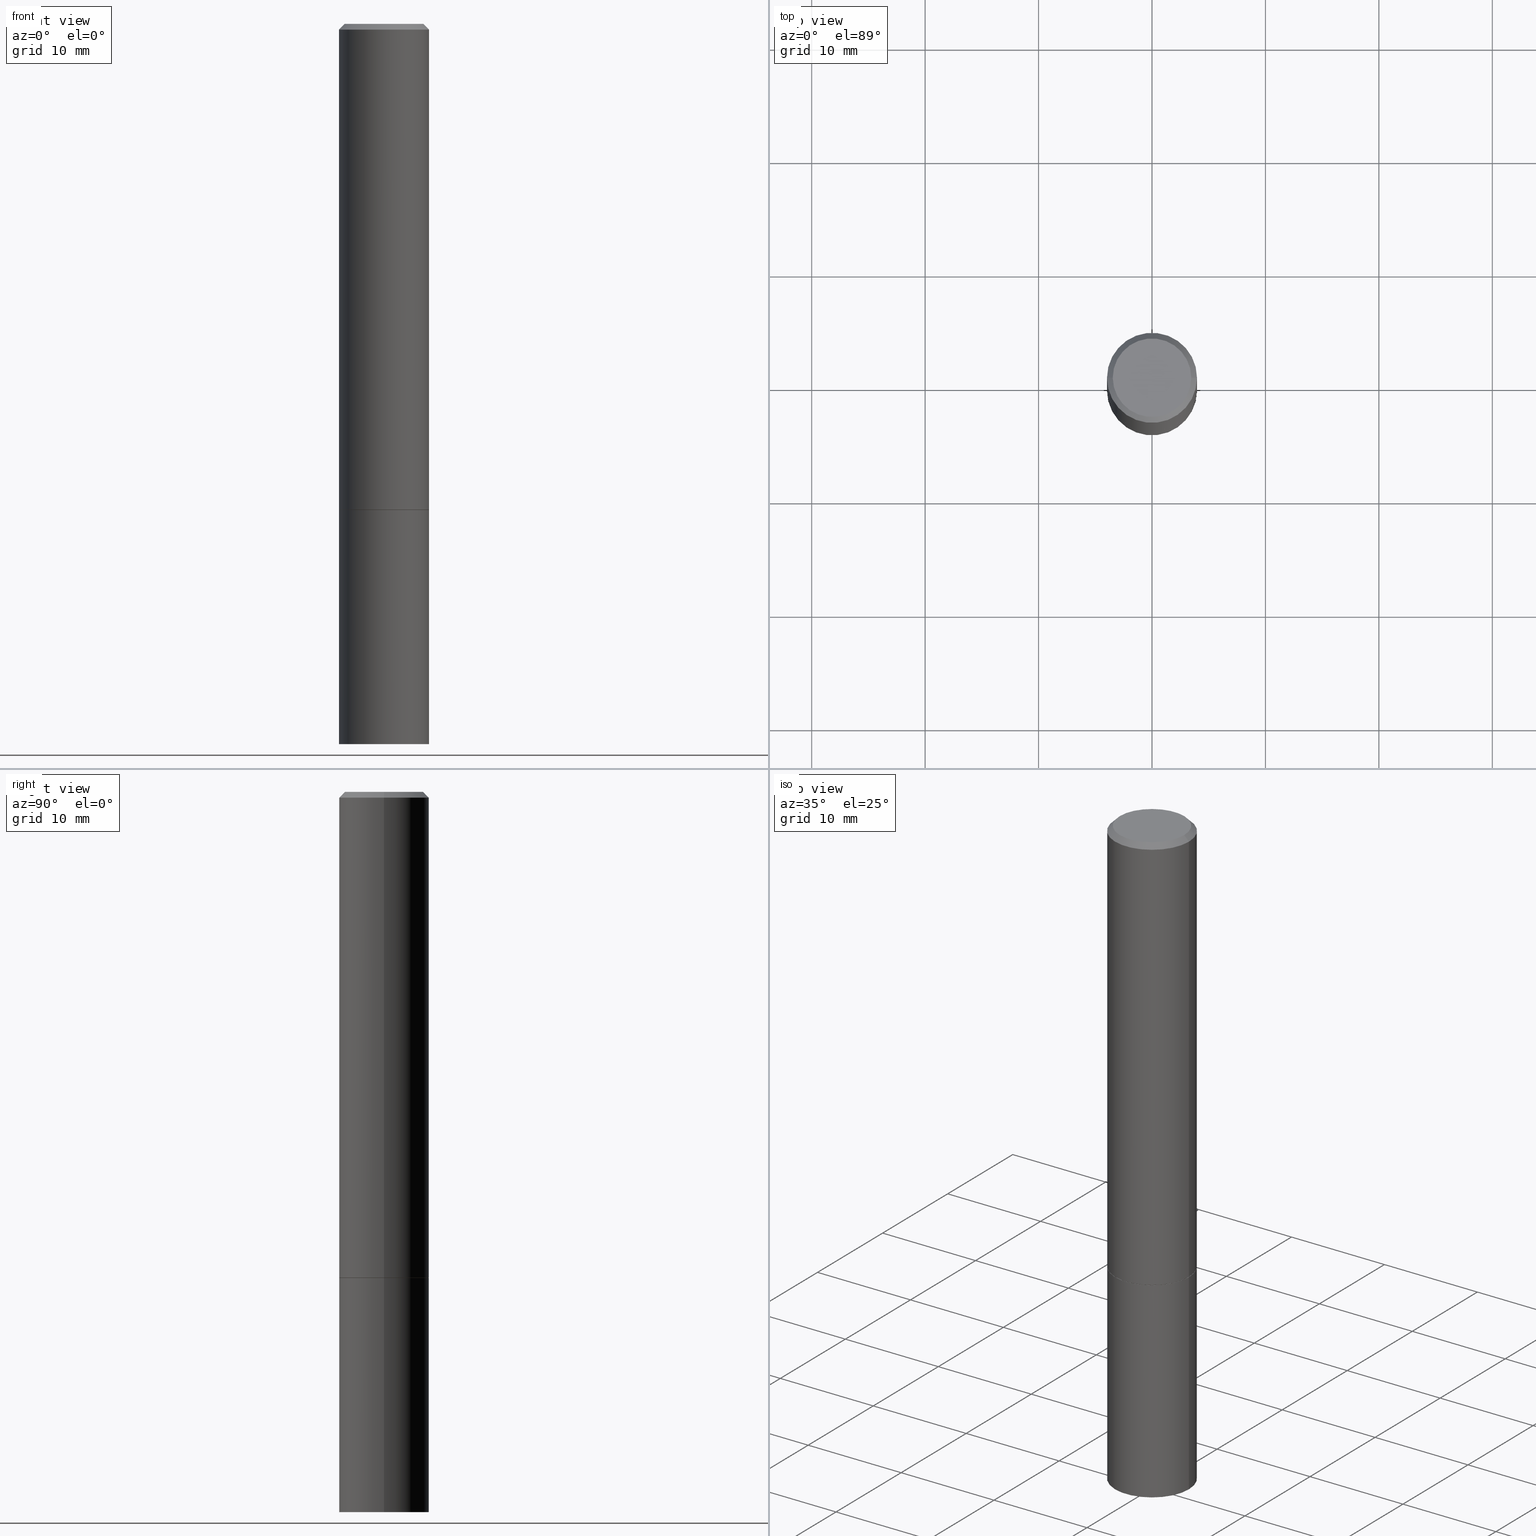
[diagram: canonical four-view strip — front | top / right | iso, engineering-drawing reading convention]
A machine part, canonical four-view strip (front | top / right | iso — engineering-drawing reading convention). The complete STEP part file that produces these views, byte-faithful:
ISO-10303-21;
HEADER;
FILE_DESCRIPTION (( 'STEP AP203' ),
    '1' );
FILE_NAME ('34663.STEP',
    '2024-02-27T16:37:16',
    ( '' ),
    ( '' ),
    'SwSTEP 2.0',
    'SolidWorks 2023',
    '' );
FILE_SCHEMA (( 'CONFIG_CONTROL_DESIGN' ));
ENDSEC;

DATA;
#1 = ADVANCED_FACE ( 'NONE', ( #108 ), #210, .T. ) ;
#2 = CARTESIAN_POINT ( 'NONE',  ( 1.091087918388520392E-15, 0.1562499999999940881, -1.687500000000000444 ) ) ;
#3 = PERSON_AND_ORGANIZATION ( #316, #141 ) ;
#4 = CARTESIAN_POINT ( 'NONE',  ( -0.1562499999999998057, 1.021258291611614692E-15, -0.02000000000000003511 ) ) ;
#5 = CARTESIAN_POINT ( 'NONE',  ( 4.126728610437418007E-29, -5.891874759297807259E-15, -1.687500000000000000 ) ) ;
#6 = ORIENTED_EDGE ( 'NONE', *, *, #315, .T. ) ;
#7 = CARTESIAN_POINT ( 'NONE',  ( -0.1562499999999999167, 1.110223024625155949E-15, -7.685836078523285555E-30 ) ) ;
#8 = VECTOR ( 'NONE', #37, 39.37007874015748143 ) ;
#9 = DIRECTION ( 'NONE',  ( 1.000000000000000000, -6.982962677686266711E-15, 4.876176775795935232E-29 ) ) ;
#10 = SHAPE_DEFINITION_REPRESENTATION ( #103, #362 ) ;
#11 = ORIENTED_EDGE ( 'NONE', *, *, #129, .F. ) ;
#12 = CARTESIAN_POINT ( 'NONE',  ( 0.1562499999999999167, -1.091087918388478385E-15, 7.619026212181144772E-30 ) ) ;
#13 = DIRECTION ( 'NONE',  ( 2.438088387897960049E-29, -3.491481338843145188E-15, -1.000000000000000000 ) ) ;
#14 = CIRCLE ( 'NONE', #267, 0.1562500000000000000 ) ;
#15 = ADVANCED_FACE ( 'NONE', ( #157 ), #279, .T. ) ;
#16 = VERTEX_POINT ( 'NONE', #276 ) ;
#17 = EDGE_CURVE ( 'NONE', #174, #72, #45, .T. ) ;
#18 = DIRECTION ( 'NONE',  ( 1.000000000000000000, -6.982962677686266711E-15, 4.876176775795936353E-29 ) ) ;
#19 = APPROVAL_PERSON_ORGANIZATION ( #161, #314, #119 ) ;
#20 = PERSON_AND_ORGANIZATION ( #316, #141 ) ;
#21 = ORIENTED_EDGE ( 'NONE', *, *, #246, .T. ) ;
#22 = CARTESIAN_POINT ( 'NONE',  ( 0.1362499999999998157, -1.038262645562516744E-15, 6.957025900226686667E-30 ) ) ;
#23 = DIRECTION ( 'NONE',  ( 0.7071067811865232589, -2.468850131082003836E-15, 0.7071067811865715536 ) ) ;
#24 = PERSON_AND_ORGANIZATION ( #316, #141 ) ;
#25 = VERTEX_POINT ( 'NONE', #241 ) ;
#26 = ORIENTED_EDGE ( 'NONE', *, *, #307, .F. ) ;
#27 = CARTESIAN_POINT ( 'NONE',  ( 0.1562500000000000000, -6.979471196347444214E-15, -1.686499999999999888 ) ) ;
#28 = AXIS2_PLACEMENT_3D ( 'NONE', #171, #64, #144 ) ;
#29 = ORIENTED_EDGE ( 'NONE', *, *, #17, .F. ) ;
#30 = AXIS2_PLACEMENT_3D ( 'NONE', #94, #175, #321 ) ;
#31 = CYLINDRICAL_SURFACE ( 'NONE', #289, 0.1562499999999999167 ) ;
#32 = CARTESIAN_POINT ( 'NONE',  ( 4.126728610437418007E-29, -5.891874759297807259E-15, -1.687500000000000000 ) ) ;
#33 = DIRECTION ( 'NONE',  ( -2.445468806185136597E-29, 3.491481338843145583E-15, 1.000000000000000000 ) ) ;
#34 = APPROVAL_DATE_TIME ( #169, #291 ) ;
#35 = FACE_OUTER_BOUND ( 'NONE', #59, .T. ) ;
#36 = CARTESIAN_POINT ( 'NONE',  ( 0.000000000000000000, 0.000000000000000000, 0.000000000000000000 ) ) ;
#37 = DIRECTION ( 'NONE',  ( -2.445468806185136877E-29, 3.491481338843145188E-15, 1.000000000000000000 ) ) ;
#38 = FACE_OUTER_BOUND ( 'NONE', #331, .T. ) ;
#39 = AXIS2_PLACEMENT_3D ( 'NONE', #83, #187, #120 ) ;
#40 = CIRCLE ( 'NONE', #176, 0.1552499999999999991 ) ;
#41 = ADVANCED_FACE ( 'NONE', ( #329 ), #270, .T. ) ;
#42 = DIRECTION ( 'NONE',  ( 0.7071067811865467956, -7.319954787623254468E-15, -0.7071067811865482389 ) ) ;
#43 = AXIS2_PLACEMENT_3D ( 'NONE', #223, #90, #58 ) ;
#44 = LOCAL_TIME ( 11, 37, 16.00000000000000000, #330 ) ;
#45 = LINE ( 'NONE', #160, #259 ) ;
#46 = CARTESIAN_POINT ( 'NONE',  ( 0.1552499999999999991, -6.975979715008601207E-15, -1.687500000000000000 ) ) ;
#47 = VERTEX_POINT ( 'NONE', #113 ) ;
#48 = DIRECTION ( 'NONE',  ( 1.000000000000000000, -6.982962677686266711E-15, 4.876176775795935232E-29 ) ) ;
#49 = DATE_TIME_ROLE ( 'creation_date' ) ;
#50 = CARTESIAN_POINT ( 'NONE',  ( 0.000000000000000000, 0.000000000000000000, 0.000000000000000000 ) ) ;
#51 = CC_DESIGN_PERSON_AND_ORGANIZATION_ASSIGNMENT ( #305, #188, ( #112 ) ) ;
#52 = ADVANCED_FACE ( 'NONE', ( #274 ), #220, .T. ) ;
#53 = CALENDAR_DATE ( 2024, 27, 2 ) ;
#54 = AXIS2_PLACEMENT_3D ( 'NONE', #126, #293, #204 ) ;
#55 = ORIENTED_EDGE ( 'NONE', *, *, #208, .F. ) ;
#56 = CALENDAR_DATE ( 2024, 27, 2 ) ;
#57 = EDGE_LOOP ( 'NONE', ( #240, #360, #136, #89 ) ) ;
#58 = DIRECTION ( 'NONE',  ( 1.000000000000000000, -6.982962677686265133E-15, 4.876176775795935232E-29 ) ) ;
#59 = EDGE_LOOP ( 'NONE', ( #271, #275, #227, #186 ) ) ;
#60 = PERSON_AND_ORGANIZATION ( #316, #141 ) ;
#61 = ORIENTED_EDGE ( 'NONE', *, *, #179, .F. ) ;
#62 =( LENGTH_UNIT ( ) NAMED_UNIT ( * ) SI_UNIT ( $, .METRE. ) );
#63 = CYLINDRICAL_SURFACE ( 'NONE', #357, 0.1562500000000000000 ) ;
#64 = DIRECTION ( 'NONE',  ( -2.445468806185136597E-29, 3.491481338843145583E-15, 1.000000000000000000 ) ) ;
#65 = DIRECTION ( 'NONE',  ( 1.000000000000000000, -6.982962677686269077E-15, 0.000000000000000000 ) ) ;
#66 = PLANE ( 'NONE',  #184 ) ;
#67 = ORIENTED_EDGE ( 'NONE', *, *, #246, .F. ) ;
#68 = EDGE_CURVE ( 'NONE', #243, #72, #308, .T. ) ;
#69 = LINE ( 'NONE', #206, #154 ) ;
#70 = AXIS2_PLACEMENT_3D ( 'NONE', #5, #127, #147 ) ;
#71 = LOCAL_TIME ( 11, 37, 16.00000000000000000, #332 ) ;
#72 = VERTEX_POINT ( 'NONE', #27 ) ;
#73 = CARTESIAN_POINT ( 'NONE',  ( 4.126728610437418007E-29, -5.891874759297807259E-15, -1.687500000000000000 ) ) ;
#74 = EDGE_LOOP ( 'NONE', ( #130, #350, #333, #172 ) ) ;
#75 = AXIS2_PLACEMENT_3D ( 'NONE', #230, #201, #65 ) ;
#76 = CARTESIAN_POINT ( 'NONE',  ( 1.091087918388540310E-15, 0.1562499999999912570, -2.500000000000000444 ) ) ;
#77 = DIMENSIONAL_EXPONENTS ( 1.000000000000000000, 0.000000000000000000, 0.000000000000000000, 0.000000000000000000, 0.000000000000000000, 0.000000000000000000, 0.000000000000000000 ) ;
#78 = MANIFOLD_SOLID_BREP ( 'Body-Move/Copy2[1]', #79 ) ;
#79 = CLOSED_SHELL ( 'NONE', ( #158, #1, #101, #41 ) ) ;
#80 = VECTOR ( 'NONE', #319, 39.37007874015748143 ) ;
#81 = APPROVAL_DATE_TIME ( #163, #314 ) ;
#82 = DIRECTION ( 'NONE',  ( 1.000000000000000000, -6.982962677686269077E-15, 0.000000000000000000 ) ) ;
#83 = CARTESIAN_POINT ( 'NONE',  ( 0.000000000000000000, 0.000000000000000000, 0.000000000000000000 ) ) ;
#84 = EDGE_CURVE ( 'NONE', #104, #190, #348, .T. ) ;
#85 = EDGE_CURVE ( 'NONE', #72, #243, #87, .T. ) ;
#86 = CALENDAR_DATE ( 2024, 27, 2 ) ;
#87 = CIRCLE ( 'NONE', #153, 0.1562500000000000000 ) ;
#88 = CONICAL_SURFACE ( 'NONE', #137, 0.1552499999999999991, 0.7853981633974141952 ) ;
#89 = ORIENTED_EDGE ( 'NONE', *, *, #324, .F. ) ;
#90 = DIRECTION ( 'NONE',  ( -2.445468806185136597E-29, 3.491481338843145583E-15, 1.000000000000000000 ) ) ;
#91 = DATE_AND_TIME ( #86, #349 ) ;
#92 = EDGE_LOOP ( 'NONE', ( #214, #6, #346, #249 ) ) ;
#93 = CARTESIAN_POINT ( 'NONE',  ( -0.1362499999999998157, 9.863434782231836346E-16, -6.775751096333130074E-30 ) ) ;
#94 = CARTESIAN_POINT ( 'NONE',  ( 4.126728610437418007E-29, -5.891874759297807259E-15, -1.687500000000000000 ) ) ;
#95 = AXIS2_PLACEMENT_3D ( 'NONE', #323, #269, #272 ) ;
#96 = APPROVAL_PERSON_ORGANIZATION ( #3, #291, #197 ) ;
#97 = DATE_TIME_ROLE ( 'classification_date' ) ;
#98 = VERTEX_POINT ( 'NONE', #168 ) ;
#99 = PLANE ( 'NONE',  #207 ) ;
#100 = CC_DESIGN_PERSON_AND_ORGANIZATION_ASSIGNMENT ( #128, #254, ( #185 ) ) ;
#101 = ADVANCED_FACE ( 'NONE', ( #343 ), #66, .F. ) ;
#102 = DIRECTION ( 'NONE',  ( 1.000000000000000000, -6.982962677686269077E-15, 0.000000000000000000 ) ) ;
#103 = PRODUCT_DEFINITION_SHAPE ( 'NONE', 'NONE',  #112 ) ;
#104 = VERTEX_POINT ( 'NONE', #93 ) ;
#105 = DIRECTION ( 'NONE',  ( 1.000000000000000000, -6.982962677686268288E-15, 0.000000000000000000 ) ) ;
#106 = CONICAL_SURFACE ( 'NONE', #30, 0.1552499999999999991, 0.7853981633974141952 ) ;
#107 = PRODUCT ( '34663', '34663', '', ( #266 ) ) ;
#108 = FACE_OUTER_BOUND ( 'NONE', #216, .T. ) ;
#109 =( CONVERSION_BASED_UNIT ( 'INCH', #198 ) LENGTH_UNIT ( ) NAMED_UNIT ( #77 ) );
#110 = CC_DESIGN_APPROVAL ( #218, ( #185 ) ) ;
#111 = EDGE_LOOP ( 'NONE', ( #125, #328, #11, #67 ) ) ;
#112 = PRODUCT_DEFINITION ( 'UNKNOWN', '', #185, #248 ) ;
#113 = CARTESIAN_POINT ( 'NONE',  ( -0.1562499999999998057, 1.021258291611614692E-15, -0.02000000000000003511 ) ) ;
#114 = ORIENTED_EDGE ( 'NONE', *, *, #68, .T. ) ;
#115 = CARTESIAN_POINT ( 'NONE',  ( 6.113672015462842613E-29, -8.728703347107864943E-15, -2.500000000000000000 ) ) ;
#116 = AXIS2_PLACEMENT_3D ( 'NONE', #76, #180, #297 ) ;
#117 = ADVANCED_FACE ( 'NONE', ( #337 ), #31, .T. ) ;
#118 = ORIENTED_EDGE ( 'NONE', *, *, #234, .F. ) ;
#119 = APPROVAL_ROLE ( '' ) ;
#120 = DIRECTION ( 'NONE',  ( 1.000000000000000000, -6.982962677686266711E-15, 4.876176775795936353E-29 ) ) ;
#121 = CIRCLE ( 'NONE', #215, 0.1362499999999998157 ) ;
#122 = SECURITY_CLASSIFICATION ( '', '', #151 ) ;
#123 = DIRECTION ( 'NONE',  ( 1.000000000000000000, -6.982962677686269077E-15, 0.000000000000000000 ) ) ;
#124 = CALENDAR_DATE ( 2024, 27, 2 ) ;
#125 = ORIENTED_EDGE ( 'NONE', *, *, #85, .T. ) ;
#126 = CARTESIAN_POINT ( 'NONE',  ( 4.126728610437418007E-29, -5.891874759297807259E-15, -1.687500000000000000 ) ) ;
#127 = DIRECTION ( 'NONE',  ( -2.438088387897960049E-29, 3.491481338843145188E-15, 1.000000000000000000 ) ) ;
#128 = PERSON_AND_ORGANIZATION ( #316, #141 ) ;
#129 = EDGE_CURVE ( 'NONE', #278, #47, #237, .T. ) ;
#130 = ORIENTED_EDGE ( 'NONE', *, *, #189, .F. ) ;
#131 = LINE ( 'NONE', #12, #8 ) ;
#132 = CARTESIAN_POINT ( 'NONE',  ( 0.000000000000000000, 0.000000000000000000, 0.000000000000000000 ) ) ;
#133 = DIRECTION ( 'NONE',  ( 1.000000000000000000, -6.982962677686269077E-15, 0.000000000000000000 ) ) ;
#134 = FACE_OUTER_BOUND ( 'NONE', #92, .T. ) ;
#135 = LOCAL_TIME ( 11, 37, 16.00000000000000000, #199 ) ;
#136 = ORIENTED_EDGE ( 'NONE', *, *, #322, .T. ) ;
#137 = AXIS2_PLACEMENT_3D ( 'NONE', #32, #228, #339 ) ;
#138 = DIRECTION ( 'NONE',  ( 2.445468806185136597E-29, -3.491481338843145583E-15, -1.000000000000000000 ) ) ;
#139 = ORIENTED_EDGE ( 'NONE', *, *, #84, .T. ) ;
#140 = AXIS2_PLACEMENT_3D ( 'NONE', #280, #224, #123 ) ;
#141 = ORGANIZATION ( 'UNSPECIFIED', 'UNSPECIFIED', '' ) ;
#142 = CARTESIAN_POINT ( 'NONE',  ( 4.124283141631232404E-29, -5.888383277958965040E-15, -1.686499999999999888 ) ) ;
#143 = CARTESIAN_POINT ( 'NONE',  ( 4.890937612370281041E-31, -6.982962677686302702E-17, -0.02000000000000003511 ) ) ;
#144 = DIRECTION ( 'NONE',  ( 1.000000000000000000, -6.982962677686265133E-15, 0.000000000000000000 ) ) ;
#145 = ADVANCED_FACE ( 'NONE', ( #257 ), #202, .F. ) ;
#146 = DIRECTION ( 'NONE',  ( -2.445468806185136597E-29, 3.491481338843145583E-15, 1.000000000000000000 ) ) ;
#147 = DIRECTION ( 'NONE',  ( 1.000000000000000000, -6.982962677686265922E-15, 4.876176775795935793E-29 ) ) ;
#148 = ORIENTED_EDGE ( 'NONE', *, *, #324, .T. ) ;
#149 = FACE_OUTER_BOUND ( 'NONE', #162, .T. ) ;
#150 = LOCAL_TIME ( 11, 37, 16.00000000000000000, #193 ) ;
#151 = SECURITY_CLASSIFICATION_LEVEL ( 'unclassified' ) ;
#152 = LINE ( 'NONE', #264, #302 ) ;
#153 = AXIS2_PLACEMENT_3D ( 'NONE', #142, #251, #229 ) ;
#154 = VECTOR ( 'NONE', #283, 39.37007874015748854 ) ;
#155 = DIRECTION ( 'NONE',  ( -2.445468806185136597E-29, 3.491481338843145583E-15, 1.000000000000000000 ) ) ;
#156 = CC_DESIGN_PERSON_AND_ORGANIZATION_ASSIGNMENT ( #24, #192, ( #185 ) ) ;
#157 = FACE_OUTER_BOUND ( 'NONE', #74, .T. ) ;
#158 = ADVANCED_FACE ( 'NONE', ( #296 ), #63, .T. ) ;
#159 = APPROVAL_PERSON_ORGANIZATION ( #20, #218, #217 ) ;
#160 = CARTESIAN_POINT ( 'NONE',  ( 0.1552499999999999991, -6.975979715008601207E-15, -1.687500000000000000 ) ) ;
#161 = PERSON_AND_ORGANIZATION ( #316, #141 ) ;
#162 = EDGE_LOOP ( 'NONE', ( #139, #366 ) ) ;
#163 = DATE_AND_TIME ( #56, #71 ) ;
#164 = ORIENTED_EDGE ( 'NONE', *, *, #85, .F. ) ;
#165 = CC_DESIGN_PERSON_AND_ORGANIZATION_ASSIGNMENT ( #361, #326, ( #107 ) ) ;
#166 = AXIS2_PLACEMENT_3D ( 'NONE', #358, #138, #354 ) ;
#167 = ORIENTED_EDGE ( 'NONE', *, *, #322, .F. ) ;
#168 = CARTESIAN_POINT ( 'NONE',  ( -0.1562500000000000000, -6.200066028577678771E-15, -2.500000000000000000 ) ) ;
#169 = DATE_AND_TIME ( #344, #150 ) ;
#170 = DIRECTION ( 'NONE',  ( -0.7071067811865467956, 2.468850131082249172E-15, -0.7071067811865482389 ) ) ;
#171 = CARTESIAN_POINT ( 'NONE',  ( 4.890937612370281041E-31, -6.982962677686302702E-17, -0.02000000000000003511 ) ) ;
#172 = ORIENTED_EDGE ( 'NONE', *, *, #231, .F. ) ;
#173 = DIRECTION ( 'NONE',  ( 2.445468806185136597E-29, -3.491481338843145583E-15, -1.000000000000000000 ) ) ;
#174 = VERTEX_POINT ( 'NONE', #46 ) ;
#175 = DIRECTION ( 'NONE',  ( -2.445468806185136597E-29, 3.491481338843145583E-15, 1.000000000000000000 ) ) ;
#176 = AXIS2_PLACEMENT_3D ( 'NONE', #219, #347, #105 ) ;
#177 = DIRECTION ( 'NONE',  ( -1.000000000000000000, 6.982962677686266711E-15, 0.000000000000000000 ) ) ;
#178 = ORIENTED_EDGE ( 'NONE', *, *, #273, .T. ) ;
#179 = EDGE_CURVE ( 'NONE', #98, #255, #14, .T. ) ;
#180 = DIRECTION ( 'NONE',  ( 2.438088387897960049E-29, -3.491481338843145188E-15, -1.000000000000000000 ) ) ;
#181 = LINE ( 'NONE', #299, #294 ) ;
#182 = DIRECTION ( 'NONE',  ( -2.445468806185136597E-29, 3.491481338843145583E-15, 1.000000000000000000 ) ) ;
#183 =( NAMED_UNIT ( * ) SI_UNIT ( $, .STERADIAN. ) SOLID_ANGLE_UNIT ( ) );
#184 = AXIS2_PLACEMENT_3D ( 'NONE', #2, #365, #336 ) ;
#185 = PRODUCT_DEFINITION_FORMATION_WITH_SPECIFIED_SOURCE ( 'ANY', '', #107, .NOT_KNOWN. ) ;
#186 = ORIENTED_EDGE ( 'NONE', *, *, #208, .T. ) ;
#187 = DIRECTION ( 'NONE',  ( -2.445468806185136597E-29, 3.491481338843145583E-15, 1.000000000000000000 ) ) ;
#188 = PERSON_AND_ORGANIZATION_ROLE ( 'creator' ) ;
#189 = EDGE_CURVE ( 'NONE', #190, #104, #121, .T. ) ;
#190 = VERTEX_POINT ( 'NONE', #22 ) ;
#191 = APPLICATION_CONTEXT ( 'configuration controlled 3d designs of mechanical parts and assemblies' ) ;
#192 = PERSON_AND_ORGANIZATION_ROLE ( 'creator' ) ;
#193 = COORDINATED_UNIVERSAL_TIME_OFFSET ( 5, 0, .BEHIND. ) ;
#194 = DIRECTION ( 'NONE',  ( -2.445468806185136877E-29, 3.491481338843145188E-15, 1.000000000000000000 ) ) ;
#195 = CIRCLE ( 'NONE', #359, 0.1562500000000000000 ) ;
#196 = DIRECTION ( 'NONE',  ( -2.445468806185136597E-29, 3.491481338843145583E-15, 1.000000000000000000 ) ) ;
#197 = APPROVAL_ROLE ( '' ) ;
#198 = LENGTH_MEASURE_WITH_UNIT ( LENGTH_MEASURE( 0.02539999999999999897 ), #62 );
#199 = COORDINATED_UNIVERSAL_TIME_OFFSET ( 5, 0, .BEHIND. ) ;
#200 = EDGE_LOOP ( 'NONE', ( #356, #148 ) ) ;
#201 = DIRECTION ( 'NONE',  ( -2.445468806185136597E-29, 3.491481338843145583E-15, 1.000000000000000000 ) ) ;
#202 = PLANE ( 'NONE',  #70 ) ;
#203 = ORIENTED_EDGE ( 'NONE', *, *, #247, .T. ) ;
#204 = DIRECTION ( 'NONE',  ( 1.000000000000000000, -6.982962677686268288E-15, 0.000000000000000000 ) ) ;
#205 = CLOSED_SHELL ( 'NONE', ( #300, #117, #15, #306, #52, #262, #145, #338 ) ) ;
#206 = CARTESIAN_POINT ( 'NONE',  ( -0.1552499999999999991, -4.788757162030252515E-15, -1.687500000000000000 ) ) ;
#207 = AXIS2_PLACEMENT_3D ( 'NONE', #258, #13, #261 ) ;
#208 = EDGE_CURVE ( 'NONE', #47, #278, #244, .T. ) ;
#209 = EDGE_CURVE ( 'NONE', #190, #278, #181, .T. ) ;
#210 = PLANE ( 'NONE',  #116 ) ;
#211 = UNCERTAINTY_MEASURE_WITH_UNIT (LENGTH_MEASURE( 1.000000000000000082E-05 ), #109, 'distance_accuracy_value', 'NONE');
#212 = CARTESIAN_POINT ( 'NONE',  ( 0.000000000000000000, 0.000000000000000000, 0.000000000000000000 ) ) ;
#213 = DIRECTION ( 'NONE',  ( -2.445468806185136597E-29, 3.491481338843145583E-15, 1.000000000000000000 ) ) ;
#214 = ORIENTED_EDGE ( 'NONE', *, *, #247, .F. ) ;
#215 = AXIS2_PLACEMENT_3D ( 'NONE', #50, #182, #48 ) ;
#216 = EDGE_LOOP ( 'NONE', ( #26, #61 ) ) ;
#217 = APPROVAL_ROLE ( '' ) ;
#218 = APPROVAL ( #242, 'UNSPECIFIED' ) ;
#219 = CARTESIAN_POINT ( 'NONE',  ( 4.126728610437418007E-29, -5.891874759297807259E-15, -1.687500000000000000 ) ) ;
#220 = CYLINDRICAL_SURFACE ( 'NONE', #43, 0.1562499999999999167 ) ;
#221 = APPLICATION_PROTOCOL_DEFINITION ( 'international standard', 'config_control_design', 1994, #304 ) ;
#222 =( GEOMETRIC_REPRESENTATION_CONTEXT ( 3 ) GLOBAL_UNCERTAINTY_ASSIGNED_CONTEXT ( ( #211 ) ) GLOBAL_UNIT_ASSIGNED_CONTEXT ( ( #109, #298, #183 ) ) REPRESENTATION_CONTEXT ( 'NONE', 'WORKASPACE' ) );
#223 = CARTESIAN_POINT ( 'NONE',  ( 0.000000000000000000, 0.000000000000000000, 0.000000000000000000 ) ) ;
#224 = DIRECTION ( 'NONE',  ( -2.445468806185136597E-29, 3.491481338843145583E-15, 1.000000000000000000 ) ) ;
#225 = CC_DESIGN_PERSON_AND_ORGANIZATION_ASSIGNMENT ( #60, #284, ( #122 ) ) ;
#226 = ORIENTED_EDGE ( 'NONE', *, *, #307, .T. ) ;
#227 = ORIENTED_EDGE ( 'NONE', *, *, #231, .T. ) ;
#228 = DIRECTION ( 'NONE',  ( -2.445468806185136597E-29, 3.491481338843145583E-15, 1.000000000000000000 ) ) ;
#229 = DIRECTION ( 'NONE',  ( 1.000000000000000000, -6.982962677686269077E-15, 0.000000000000000000 ) ) ;
#230 = CARTESIAN_POINT ( 'NONE',  ( 4.126728610437418007E-29, -5.891874759297807259E-15, -1.687500000000000000 ) ) ;
#231 = EDGE_CURVE ( 'NONE', #104, #47, #353, .T. ) ;
#232 = DIRECTION ( 'NONE',  ( -2.445468806185136597E-29, 3.491481338843145583E-15, 1.000000000000000000 ) ) ;
#233 = CIRCLE ( 'NONE', #303, 0.1562500000000000000 ) ;
#234 = EDGE_CURVE ( 'NONE', #295, #25, #311, .T. ) ;
#235 = ORIENTED_EDGE ( 'NONE', *, *, #363, .F. ) ;
#236 = APPLICATION_PROTOCOL_DEFINITION ( 'international standard', 'config_control_design', 1994, #191 ) ;
#237 = CIRCLE ( 'NONE', #28, 0.1562499999999998057 ) ;
#238 = VECTOR ( 'NONE', #194, 39.37007874015748143 ) ;
#239 = COORDINATED_UNIVERSAL_TIME_OFFSET ( 5, 0, .BEHIND. ) ;
#240 = ORIENTED_EDGE ( 'NONE', *, *, #273, .F. ) ;
#241 = CARTESIAN_POINT ( 'NONE',  ( -0.1562500000000000000, -6.200066028577678771E-15, -1.687500000000000000 ) ) ;
#242 = APPROVAL_STATUS ( 'not_yet_approved' ) ;
#243 = VERTEX_POINT ( 'NONE', #342 ) ;
#244 = CIRCLE ( 'NONE', #95, 0.1562499999999998057 ) ;
#245 = VECTOR ( 'NONE', #170, 39.37007874015748143 ) ;
#246 = EDGE_CURVE ( 'NONE', #72, #278, #131, .T. ) ;
#247 = EDGE_CURVE ( 'NONE', #16, #243, #69, .T. ) ;
#248 = DESIGN_CONTEXT ( 'detailed design', #304, 'design' ) ;
#249 = ORIENTED_EDGE ( 'NONE', *, *, #68, .F. ) ;
#250 = PRODUCT_RELATED_PRODUCT_CATEGORY ( 'detail', '', ( #107 ) ) ;
#251 = DIRECTION ( 'NONE',  ( -2.445468806185136597E-29, 3.491481338843145583E-15, 1.000000000000000000 ) ) ;
#252 = ORIENTED_EDGE ( 'NONE', *, *, #351, .F. ) ;
#253 = CARTESIAN_POINT ( 'NONE',  ( 0.000000000000000000, 0.000000000000000000, 0.000000000000000000 ) ) ;
#254 = PERSON_AND_ORGANIZATION_ROLE ( 'design_supplier' ) ;
#255 = VERTEX_POINT ( 'NONE', #288 ) ;
#256 = CARTESIAN_POINT ( 'NONE',  ( 6.113672015462842613E-29, -8.728703347107864943E-15, -2.500000000000000000 ) ) ;
#257 = FACE_OUTER_BOUND ( 'NONE', #265, .T. ) ;
#258 = CARTESIAN_POINT ( 'NONE',  ( 9.514286648347523799E-16, 0.1362499999999998157, -4.757143324173778663E-16 ) ) ;
#259 = VECTOR ( 'NONE', #23, 39.37007874015748854 ) ;
#260 = AXIS2_PLACEMENT_3D ( 'NONE', #143, #173, #177 ) ;
#261 = DIRECTION ( 'NONE',  ( -1.000000000000000000, 6.982962677686265922E-15, -4.876176775795935793E-29 ) ) ;
#262 = ADVANCED_FACE ( 'NONE', ( #134 ), #106, .T. ) ;
#263 = LINE ( 'NONE', #7, #80 ) ;
#264 = CARTESIAN_POINT ( 'NONE',  ( 0.1562500000000000000, -1.091087918388479174E-15, 7.619026212181150377E-30 ) ) ;
#265 = EDGE_LOOP ( 'NONE', ( #235, #341 ) ) ;
#266 = MECHANICAL_CONTEXT ( 'NONE', #191, 'mechanical' ) ;
#267 = AXIS2_PLACEMENT_3D ( 'NONE', #115, #213, #82 ) ;
#268 = CC_DESIGN_APPROVAL ( #314, ( #112 ) ) ;
#269 = DIRECTION ( 'NONE',  ( -2.445468806185136597E-29, 3.491481338843145583E-15, 1.000000000000000000 ) ) ;
#270 = CYLINDRICAL_SURFACE ( 'NONE', #39, 0.1562500000000000000 ) ;
#271 = ORIENTED_EDGE ( 'NONE', *, *, #209, .F. ) ;
#272 = DIRECTION ( 'NONE',  ( 1.000000000000000000, -6.982962677686265133E-15, 0.000000000000000000 ) ) ;
#273 = EDGE_CURVE ( 'NONE', #98, #25, #313, .T. ) ;
#274 = FACE_OUTER_BOUND ( 'NONE', #335, .T. ) ;
#275 = ORIENTED_EDGE ( 'NONE', *, *, #84, .F. ) ;
#276 = CARTESIAN_POINT ( 'NONE',  ( -0.1552499999999999991, -4.783458707682030113E-15, -1.687500000000000000 ) ) ;
#277 = DATE_AND_TIME ( #53, #44 ) ;
#278 = VERTEX_POINT ( 'NONE', #292 ) ;
#279 = CONICAL_SURFACE ( 'NONE', #166, 0.1562499999999998057, 0.7853981633974472798 ) ;
#280 = CARTESIAN_POINT ( 'NONE',  ( 4.124283141631232404E-29, -5.888383277958965040E-15, -1.686499999999999888 ) ) ;
#281 = DATE_AND_TIME ( #124, #135 ) ;
#282 = EDGE_LOOP ( 'NONE', ( #226, #178, #118, #167 ) ) ;
#283 = DIRECTION ( 'NONE',  ( -0.7071067811865232589, 7.493145998870265808E-15, 0.7071067811865715536 ) ) ;
#284 = PERSON_AND_ORGANIZATION_ROLE ( 'classification_officer' ) ;
#285 = ORIENTED_EDGE ( 'NONE', *, *, #363, .T. ) ;
#286 = DIRECTION ( 'NONE',  ( -2.445468806185136877E-29, 3.491481338843145188E-15, 1.000000000000000000 ) ) ;
#287 = CC_DESIGN_DATE_AND_TIME_ASSIGNMENT ( #91, #49, ( #112 ) ) ;
#288 = CARTESIAN_POINT ( 'NONE',  ( 0.1562500000000000000, -9.819791265496344905E-15, -2.500000000000000000 ) ) ;
#289 = AXIS2_PLACEMENT_3D ( 'NONE', #253, #196, #312 ) ;
#290 = CONICAL_SURFACE ( 'NONE', #260, 0.1562499999999998057, 0.7853981633974472798 ) ;
#291 = APPROVAL ( #320, 'UNSPECIFIED' ) ;
#292 = CARTESIAN_POINT ( 'NONE',  ( 0.1562499999999998057, -1.141782438928663330E-15, -0.02000000000000003511 ) ) ;
#293 = DIRECTION ( 'NONE',  ( -2.445468806185136597E-29, 3.491481338843145583E-15, 1.000000000000000000 ) ) ;
#294 = VECTOR ( 'NONE', #42, 39.37007874015748143 ) ;
#295 = VERTEX_POINT ( 'NONE', #345 ) ;
#296 = FACE_OUTER_BOUND ( 'NONE', #282, .T. ) ;
#297 = DIRECTION ( 'NONE',  ( -1.000000000000000000, 6.982962677686265922E-15, -4.876176775795935793E-29 ) ) ;
#298 =( NAMED_UNIT ( * ) PLANE_ANGLE_UNIT ( ) SI_UNIT ( $, .RADIAN. ) );
#299 = CARTESIAN_POINT ( 'NONE',  ( 0.1562499999999998057, -1.141782438928663330E-15, -0.02000000000000003511 ) ) ;
#300 = ADVANCED_FACE ( 'NONE', ( #38 ), #88, .T. ) ;
#301 = DIRECTION ( 'NONE',  ( 1.000000000000000000, 0.000000000000000000, 0.000000000000000000 ) ) ;
#302 = VECTOR ( 'NONE', #286, 39.37007874015748143 ) ;
#303 = AXIS2_PLACEMENT_3D ( 'NONE', #73, #146, #133 ) ;
#304 = APPLICATION_CONTEXT ( 'configuration controlled 3d designs of mechanical parts and assemblies' ) ;
#305 = PERSON_AND_ORGANIZATION ( #316, #141 ) ;
#306 = ADVANCED_FACE ( 'NONE', ( #35 ), #290, .T. ) ;
#307 = EDGE_CURVE ( 'NONE', #255, #98, #195, .T. ) ;
#308 = CIRCLE ( 'NONE', #140, 0.1562500000000000000 ) ;
#309 = AXIS2_PLACEMENT_3D ( 'NONE', #212, #325, #301 ) ;
#310 = APPROVAL_STATUS ( 'not_yet_approved' ) ;
#311 = CIRCLE ( 'NONE', #75, 0.1562500000000000000 ) ;
#312 = DIRECTION ( 'NONE',  ( 1.000000000000000000, -6.982962677686265133E-15, 4.876176775795935232E-29 ) ) ;
#313 = LINE ( 'NONE', #317, #238 ) ;
#314 = APPROVAL ( #310, 'UNSPECIFIED' ) ;
#315 = EDGE_CURVE ( 'NONE', #16, #174, #334, .T. ) ;
#316 = PERSON ( 'UNSPECIFIED', 'UNSPECIFIED', 'UNSPECIFIED', ('UNSPECIFIED'), ('UNSPECIFIED'), ('UNSPECIFIED') ) ;
#317 = CARTESIAN_POINT ( 'NONE',  ( -0.1562500000000000000, 1.110223024625156540E-15, -7.685836078523291160E-30 ) ) ;
#318 = MANIFOLD_SOLID_BREP ( 'Body-Move/Copy2[2]', #205 ) ;
#319 = DIRECTION ( 'NONE',  ( -2.445468806185136877E-29, 3.491481338843145188E-15, 1.000000000000000000 ) ) ;
#320 = APPROVAL_STATUS ( 'not_yet_approved' ) ;
#321 = DIRECTION ( 'NONE',  ( 1.000000000000000000, -6.982962677686268288E-15, 0.000000000000000000 ) ) ;
#322 = EDGE_CURVE ( 'NONE', #255, #295, #152, .T. ) ;
#323 = CARTESIAN_POINT ( 'NONE',  ( 4.890937612370281041E-31, -6.982962677686302702E-17, -0.02000000000000003511 ) ) ;
#324 = EDGE_CURVE ( 'NONE', #25, #295, #233, .T. ) ;
#325 = DIRECTION ( 'NONE',  ( 0.000000000000000000, 0.000000000000000000, 1.000000000000000000 ) ) ;
#326 = PERSON_AND_ORGANIZATION_ROLE ( 'design_owner' ) ;
#327 = CC_DESIGN_SECURITY_CLASSIFICATION ( #122, ( #185 ) ) ;
#328 = ORIENTED_EDGE ( 'NONE', *, *, #351, .T. ) ;
#329 = FACE_OUTER_BOUND ( 'NONE', #57, .T. ) ;
#330 = COORDINATED_UNIVERSAL_TIME_OFFSET ( 5, 0, .BEHIND. ) ;
#331 = EDGE_LOOP ( 'NONE', ( #285, #203, #164, #29 ) ) ;
#332 = COORDINATED_UNIVERSAL_TIME_OFFSET ( 5, 0, .BEHIND. ) ;
#333 = ORIENTED_EDGE ( 'NONE', *, *, #129, .T. ) ;
#334 = CIRCLE ( 'NONE', #54, 0.1552499999999999991 ) ;
#335 = EDGE_LOOP ( 'NONE', ( #252, #114, #21, #55 ) ) ;
#336 = DIRECTION ( 'NONE',  ( -1.000000000000000000, 6.982962677686265922E-15, -4.876176775795935793E-29 ) ) ;
#337 = FACE_OUTER_BOUND ( 'NONE', #111, .T. ) ;
#338 = ADVANCED_FACE ( 'NONE', ( #149 ), #99, .F. ) ;
#339 = DIRECTION ( 'NONE',  ( 1.000000000000000000, -6.982962677686268288E-15, 0.000000000000000000 ) ) ;
#340 = CC_DESIGN_APPROVAL ( #291, ( #122 ) ) ;
#341 = ORIENTED_EDGE ( 'NONE', *, *, #315, .F. ) ;
#342 = CARTESIAN_POINT ( 'NONE',  ( -0.1562500000000000000, -1.868883427742755657E-15, -1.686499999999999888 ) ) ;
#343 = FACE_OUTER_BOUND ( 'NONE', #200, .T. ) ;
#344 = CALENDAR_DATE ( 2024, 27, 2 ) ;
#345 = CARTESIAN_POINT ( 'NONE',  ( 0.1562500000000000000, -6.982962677686287221E-15, -1.687500000000000000 ) ) ;
#346 = ORIENTED_EDGE ( 'NONE', *, *, #17, .T. ) ;
#347 = DIRECTION ( 'NONE',  ( -2.445468806185136597E-29, 3.491481338843145583E-15, 1.000000000000000000 ) ) ;
#348 = CIRCLE ( 'NONE', #352, 0.1362499999999998157 ) ;
#349 = LOCAL_TIME ( 11, 37, 16.00000000000000000, #239 ) ;
#350 = ORIENTED_EDGE ( 'NONE', *, *, #209, .T. ) ;
#351 = EDGE_CURVE ( 'NONE', #243, #47, #263, .T. ) ;
#352 = AXIS2_PLACEMENT_3D ( 'NONE', #132, #33, #9 ) ;
#353 = LINE ( 'NONE', #4, #245 ) ;
#354 = DIRECTION ( 'NONE',  ( -1.000000000000000000, 6.982962677686266711E-15, 0.000000000000000000 ) ) ;
#355 = APPROVAL_DATE_TIME ( #277, #218 ) ;
#356 = ORIENTED_EDGE ( 'NONE', *, *, #234, .T. ) ;
#357 = AXIS2_PLACEMENT_3D ( 'NONE', #36, #155, #18 ) ;
#358 = CARTESIAN_POINT ( 'NONE',  ( 4.890937612370281041E-31, -6.982962677686302702E-17, -0.02000000000000003511 ) ) ;
#359 = AXIS2_PLACEMENT_3D ( 'NONE', #256, #232, #102 ) ;
#360 = ORIENTED_EDGE ( 'NONE', *, *, #179, .T. ) ;
#361 = PERSON_AND_ORGANIZATION ( #316, #141 ) ;
#362 = ADVANCED_BREP_SHAPE_REPRESENTATION ( '34663', ( #78, #318, #309 ), #222 ) ;
#363 = EDGE_CURVE ( 'NONE', #174, #16, #40, .T. ) ;
#364 = CC_DESIGN_DATE_AND_TIME_ASSIGNMENT ( #281, #97, ( #122 ) ) ;
#365 = DIRECTION ( 'NONE',  ( 2.438088387897960049E-29, -3.491481338843145188E-15, -1.000000000000000000 ) ) ;
#366 = ORIENTED_EDGE ( 'NONE', *, *, #189, .T. ) ;
ENDSEC;
END-ISO-10303-21;
